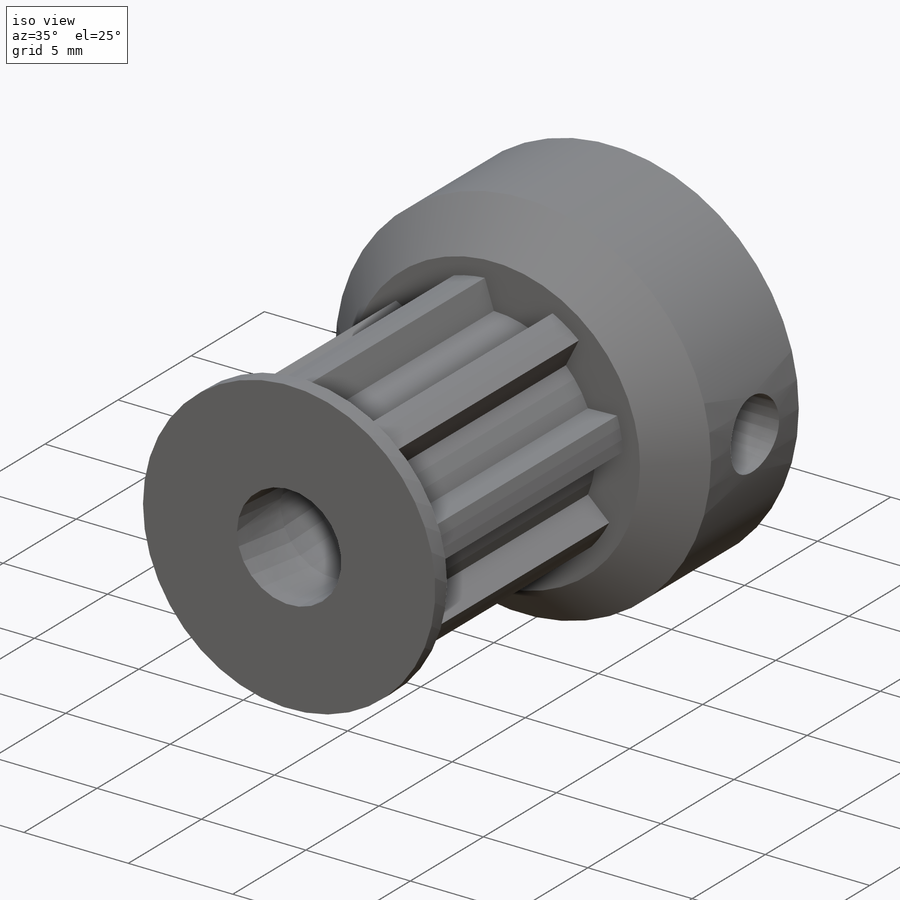
[diagram: iso view]
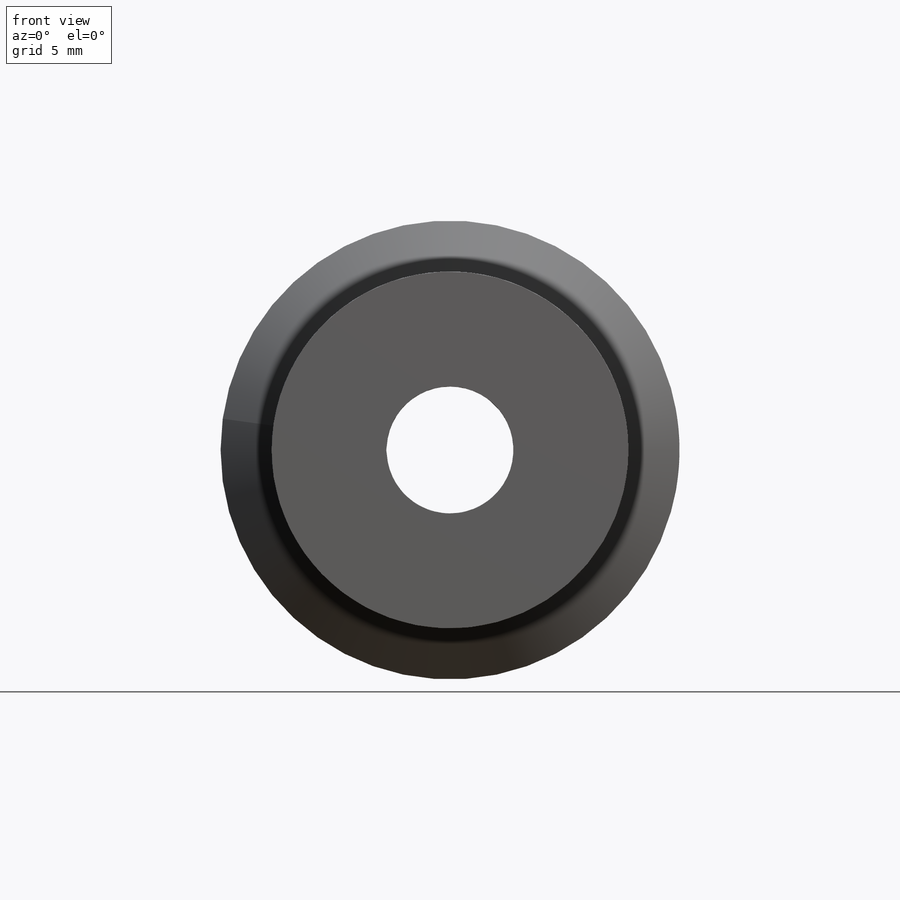
[diagram: front view]
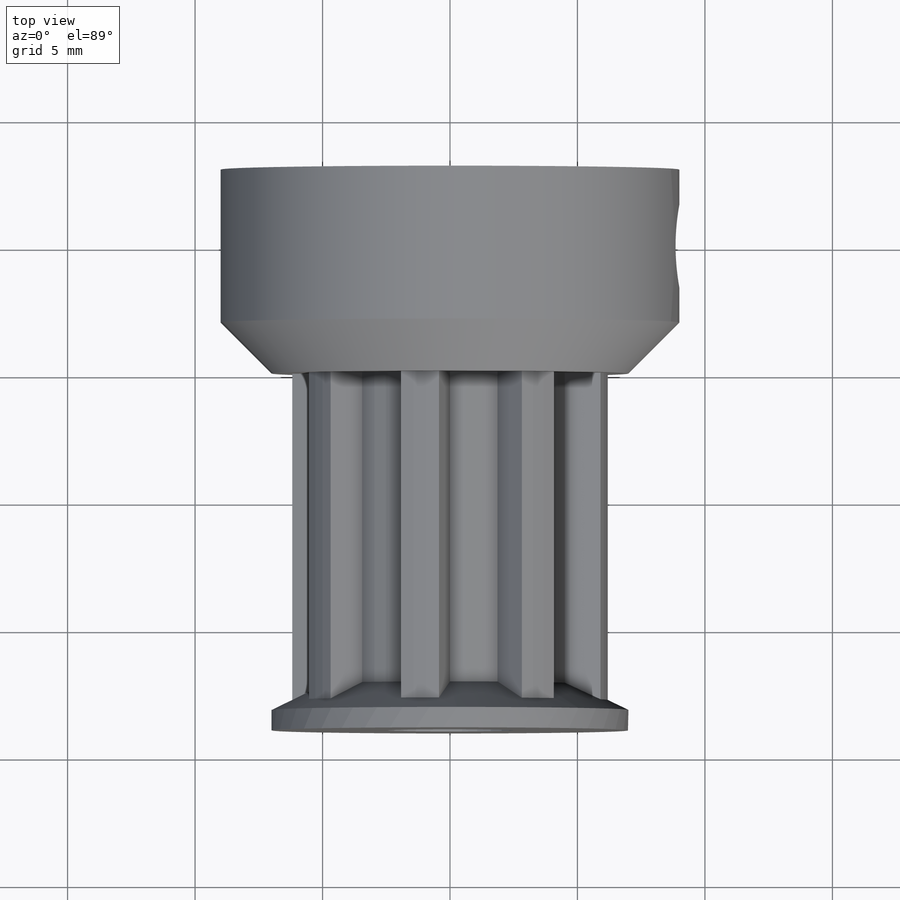
[diagram: top view]
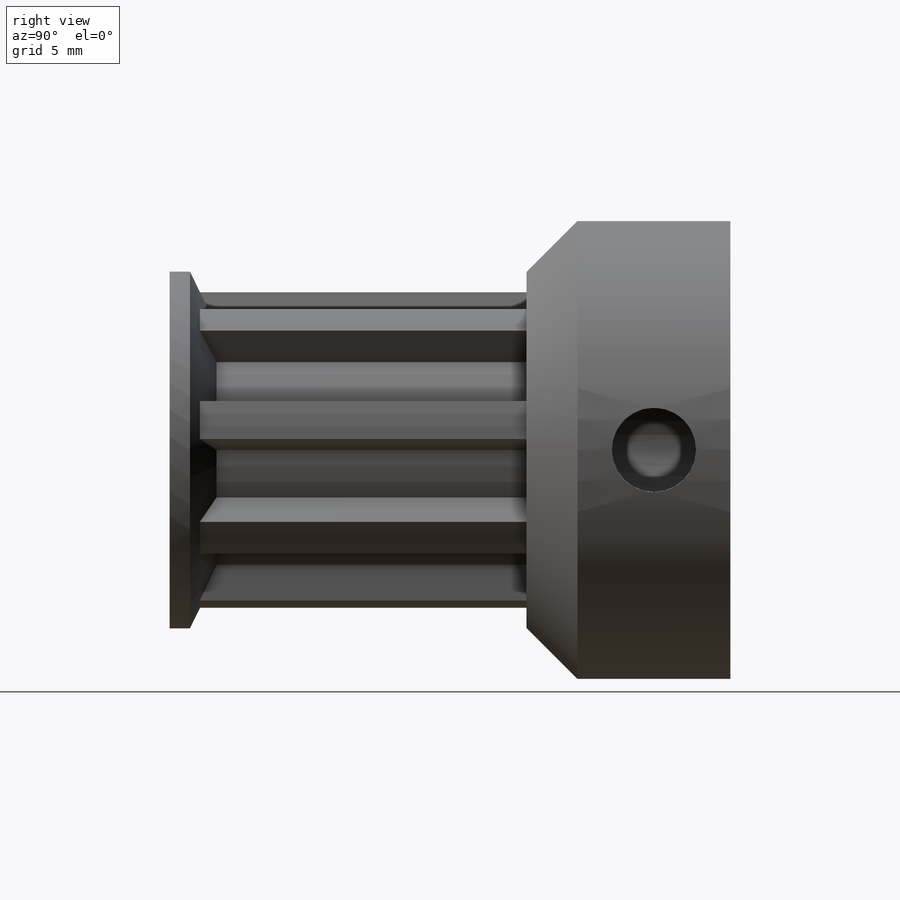
[diagram: right view]
SOLIDWORKS PART (.sldprt)
format: sldprt  version: not decoded by parser v0  size: 409,600 bytes
history: native  units: mm
features: sketch x6, cut_extrude x3, chamfer x3, extrude x2, plane x2, material x1, revolve x1 (+16 scaffold rows collapsed)
feature tree (34):
  scaffold x16  (default folders/planes/origin — collapsed)
  material  "Green ABS"
  sketch  "Sketch2"  dims[D1=5.25mm D2=~6.200252mm]
  extrude  "Boss-Extrude1"  Depth=14mm
  sketch  "Sketch3"  dims[D1=18.0mm]
  extrude  "Boss-Extrude2"  Depth=8mm
  sketch  "Sketch4"  dims[D1=~2.547616mm]
  cut_extrude  "Cut-Extrude1"  [1 undecoded]
  sketch  "Sketch5"  dims[D1=7.0mm D2=0.8mm D3=3.0mm D4=2.5mm]
  revolve  "Revolve1"  Angle=360deg
  chamfer  "Chamfer1"  Distance=2mm Angle=45deg
  plane  "Plane1"
  plane  "Plane2"  Offset=5mm
  sketch  "Sketch6"  dims[D1=5.8mm D2=3.0mm]
  cut_extrude  "Cut-Extrude2"  Depth=2.7mm
  sketch  "Sketch7"  dims[D1=5.8mm D2=3.3mm]
  cut_extrude  "Cut-Extrude3"  [1 undecoded]
  chamfer  "Chamfer2"  Distance=0.5mm Angle=45deg
  chamfer  "Chamfer3"  Distance=0.5mm Angle=45deg
decode coverage: 13 of 15 modeling features carry decoded parameters
note: ~ marks probable driven/reference dimensions
note: 2 parameter values undecoded
note: suppression state not decoded; provenance and decode notes live in map.json
